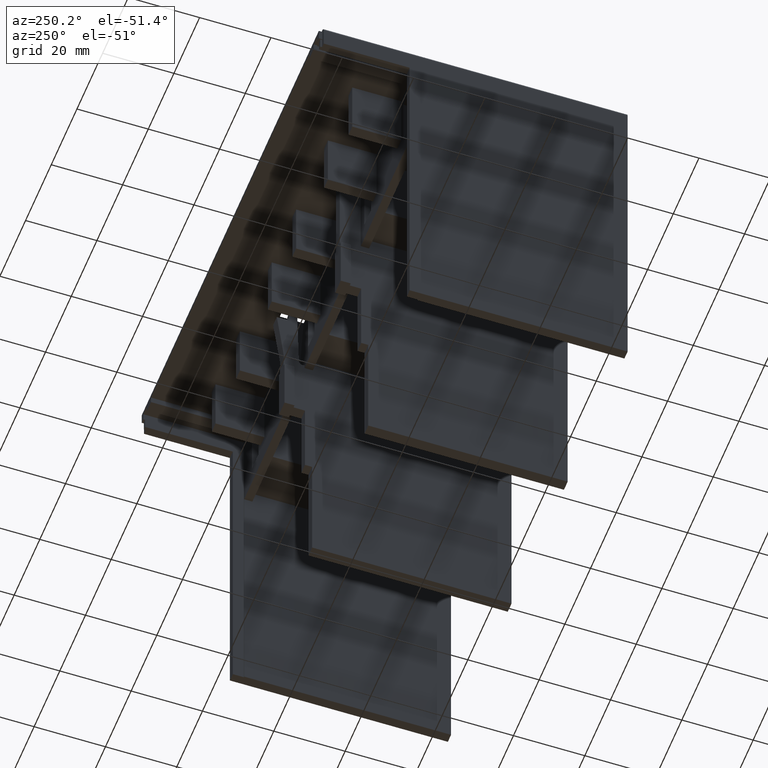
[diagram: clean part render]
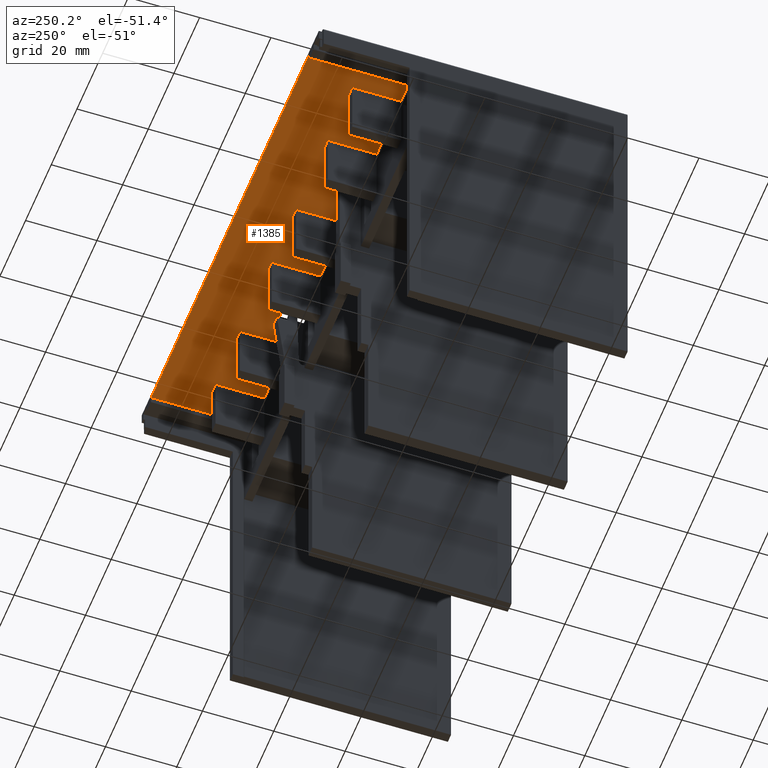
[diagram: same view with one face highlighted and labeled with its STEP entity id]
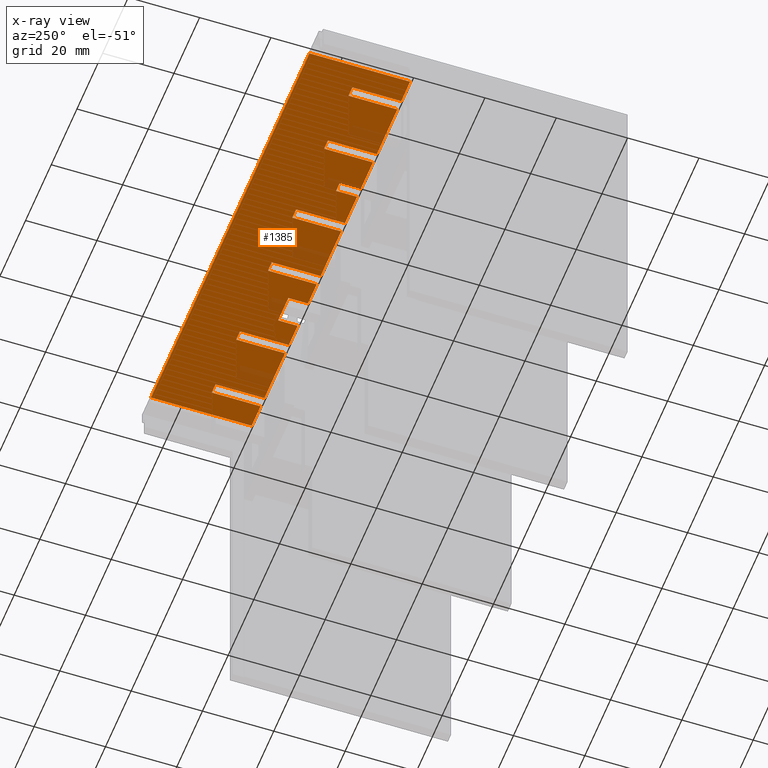
[diagram: x-ray of the same camera — body ghosted, the highlighted face saturated]
A machine part, auxiliary view. The second image highlights one B-rep face of the part: STEP entity #1385.
The next image is the same camera in x-ray: the body ghosted, the highlighted face saturated — about 5% of this face is hidden behind the body in this view.
In plain terms, the highlighted planar face has unit normal (0, -0, 1).
Its self-contained STEP definition (entity closure, byte-faithful):
#1385 = ADVANCED_FACE( '', ( #2840 ), #2841, .F. );
#2840 = FACE_OUTER_BOUND( '', #4350, .T. );
#2841 = PLANE( '', #4351 );
#4350 = EDGE_LOOP( '', ( #8958, #8959, #8960, #8961, #8962, #8963, #8964, #8965, #8966, #8967, #8968, #8969, #8970, #8971, #8972, #8973, #8974, #8975, #8976, #8977, #8978, #8979, #8980, #8981, #8982, #8983, #8984, #8985, #8986, #8987, #8988, #8989, #8990, #8991, #8992, #8993 ) );
#4351 = AXIS2_PLACEMENT_3D( '', #8994, #8995, #8996 );
#8958 = ORIENTED_EDGE( '', *, *, #10898, .F. );
#8959 = ORIENTED_EDGE( '', *, *, #9632, .T. );
#8960 = ORIENTED_EDGE( '', *, *, #11133, .T. );
#8961 = ORIENTED_EDGE( '', *, *, #11425, .F. );
#8962 = ORIENTED_EDGE( '', *, *, #10608, .F. );
#8963 = ORIENTED_EDGE( '', *, *, #11426, .F. );
#8964 = ORIENTED_EDGE( '', *, *, #10868, .T. );
#8965 = ORIENTED_EDGE( '', *, *, #11256, .F. );
#8966 = ORIENTED_EDGE( '', *, *, #10605, .F. );
#8967 = ORIENTED_EDGE( '', *, *, #11427, .F. );
#8968 = ORIENTED_EDGE( '', *, *, #11428, .T. );
#8969 = ORIENTED_EDGE( '', *, *, #11429, .F. );
#8970 = ORIENTED_EDGE( '', *, *, #10602, .F. );
#8971 = ORIENTED_EDGE( '', *, *, #10553, .T. );
#8972 = ORIENTED_EDGE( '', *, *, #11277, .F. );
#8973 = ORIENTED_EDGE( '', *, *, #11420, .F. );
#8974 = ORIENTED_EDGE( '', *, *, #11376, .F. );
#8975 = ORIENTED_EDGE( '', *, *, #11430, .F. );
#8976 = ORIENTED_EDGE( '', *, *, #9782, .T. );
#8977 = ORIENTED_EDGE( '', *, *, #9824, .F. );
#8978 = ORIENTED_EDGE( '', *, *, #11383, .F. );
#8979 = ORIENTED_EDGE( '', *, *, #10387, .F. );
#8980 = ORIENTED_EDGE( '', *, *, #11026, .T. );
#8981 = ORIENTED_EDGE( '', *, *, #10876, .F. );
#8982 = ORIENTED_EDGE( '', *, *, #11381, .F. );
#8983 = ORIENTED_EDGE( '', *, *, #11029, .F. );
#8984 = ORIENTED_EDGE( '', *, *, #11114, .F. );
#8985 = ORIENTED_EDGE( '', *, *, #11413, .T. );
#8986 = ORIENTED_EDGE( '', *, *, #10902, .F. );
#8987 = ORIENTED_EDGE( '', *, *, #11431, .F. );
#8988 = ORIENTED_EDGE( '', *, *, #9752, .T. );
#8989 = ORIENTED_EDGE( '', *, *, #10299, .F. );
#8990 = ORIENTED_EDGE( '', *, *, #10899, .F. );
#8991 = ORIENTED_EDGE( '', *, *, #9721, .F. );
#8992 = ORIENTED_EDGE( '', *, *, #11171, .T. );
#8993 = ORIENTED_EDGE( '', *, *, #10682, .F. );
#8994 = CARTESIAN_POINT( '', ( 61.7250000000000, 1.00000000000000, -1.76000000000000 ) );
#8995 = DIRECTION( '', ( 0.000000000000000, -0.000000000000000, 1.00000000000000 ) );
#8996 = DIRECTION( '', ( 1.00000000000000, 0.000000000000000, -0.000000000000000 ) );
#9632 = EDGE_CURVE( '', #11705, #11714, #11716, .T. );
#9721 = EDGE_CURVE( '', #11873, #11875, #11876, .T. );
#9752 = EDGE_CURVE( '', #11929, #11930, #11931, .T. );
#9782 = EDGE_CURVE( '', #11983, #11984, #11985, .T. );
#9824 = EDGE_CURVE( '', #12057, #11984, #12059, .T. );
#10299 = EDGE_CURVE( '', #12901, #11930, #12903, .T. );
#10387 = EDGE_CURVE( '', #13032, #13035, #13036, .T. );
#10553 = EDGE_CURVE( '', #13279, #13277, #13280, .T. );
#10602 = EDGE_CURVE( '', #13279, #13353, #13354, .T. );
#10605 = EDGE_CURVE( '', #13356, #13358, #13359, .T. );
#10608 = EDGE_CURVE( '', #13361, #13348, #13363, .T. );
#10682 = EDGE_CURVE( '', #13466, #13468, #13469, .T. );
#10868 = EDGE_CURVE( '', #13721, #13722, #13723, .T. );
#10876 = EDGE_CURVE( '', #13732, #13734, #13735, .T. );
#10898 = EDGE_CURVE( '', #11705, #13466, #13764, .T. );
#10899 = EDGE_CURVE( '', #11875, #12901, #13765, .T. );
#10902 = EDGE_CURVE( '', #13768, #13770, #13771, .T. );
#11026 = EDGE_CURVE( '', #13032, #13734, #13933, .T. );
#11029 = EDGE_CURVE( '', #13936, #13937, #13938, .T. );
#11114 = EDGE_CURVE( '', #14039, #13936, #14041, .T. );
#11133 = EDGE_CURVE( '', #11714, #14063, #14065, .T. );
#11171 = EDGE_CURVE( '', #11873, #13468, #14111, .T. );
#11256 = EDGE_CURVE( '', #13358, #13722, #14212, .T. );
#11277 = EDGE_CURVE( '', #14234, #13277, #14236, .T. );
#11376 = EDGE_CURVE( '', #14351, #14352, #14353, .T. );
#11381 = EDGE_CURVE( '', #13937, #13732, #14359, .T. );
#11383 = EDGE_CURVE( '', #13035, #12057, #14361, .T. );
#11413 = EDGE_CURVE( '', #14039, #13770, #14392, .T. );
#11420 = EDGE_CURVE( '', #14352, #14234, #14400, .T. );
#11425 = EDGE_CURVE( '', #13348, #14063, #14405, .T. );
#11426 = EDGE_CURVE( '', #13721, #13361, #14406, .T. );
#11427 = EDGE_CURVE( '', #14407, #13356, #14408, .T. );
#11428 = EDGE_CURVE( '', #14407, #14409, #14410, .T. );
#11429 = EDGE_CURVE( '', #13353, #14409, #14411, .T. );
#11430 = EDGE_CURVE( '', #11983, #14351, #14412, .T. );
#11431 = EDGE_CURVE( '', #11929, #13768, #14413, .T. );
#11705 = VERTEX_POINT( '', #14775 );
#11714 = VERTEX_POINT( '', #14787 );
#11716 = LINE( '', #14790, #14791 );
#11873 = VERTEX_POINT( '', #15017 );
#11875 = VERTEX_POINT( '', #15020 );
#11876 = LINE( '', #15021, #15022 );
#11929 = VERTEX_POINT( '', #15099 );
#11930 = VERTEX_POINT( '', #15100 );
#11931 = LINE( '', #15101, #15102 );
#11983 = VERTEX_POINT( '', #15177 );
#11984 = VERTEX_POINT( '', #15178 );
#11985 = LINE( '', #15179, #15180 );
#12057 = VERTEX_POINT( '', #15284 );
#12059 = LINE( '', #15287, #15288 );
#12901 = VERTEX_POINT( '', #16563 );
#12903 = LINE( '', #16566, #16567 );
#13032 = VERTEX_POINT( '', #16762 );
#13035 = VERTEX_POINT( '', #16766 );
#13036 = LINE( '', #16767, #16768 );
#13277 = VERTEX_POINT( '', #17130 );
#13279 = VERTEX_POINT( '', #17133 );
#13280 = LINE( '', #17134, #17135 );
#13348 = VERTEX_POINT( '', #17239 );
#13353 = VERTEX_POINT( '', #17247 );
#13354 = LINE( '', #17248, #17249 );
#13356 = VERTEX_POINT( '', #17252 );
#13358 = VERTEX_POINT( '', #17255 );
#13359 = LINE( '', #17256, #17257 );
#13361 = VERTEX_POINT( '', #17260 );
#13363 = LINE( '', #17263, #17264 );
#13466 = VERTEX_POINT( '', #17418 );
#13468 = VERTEX_POINT( '', #17421 );
#13469 = LINE( '', #17422, #17423 );
#13721 = VERTEX_POINT( '', #17801 );
#13722 = VERTEX_POINT( '', #17802 );
#13723 = LINE( '', #17803, #17804 );
#13732 = VERTEX_POINT( '', #17817 );
#13734 = VERTEX_POINT( '', #17820 );
#13735 = LINE( '', #17821, #17822 );
#13764 = LINE( '', #17866, #17867 );
#13765 = LINE( '', #17868, #17869 );
#13768 = VERTEX_POINT( '', #17873 );
#13770 = VERTEX_POINT( '', #17876 );
#13771 = LINE( '', #17877, #17878 );
#13933 = LINE( '', #18121, #18122 );
#13936 = VERTEX_POINT( '', #18126 );
#13937 = VERTEX_POINT( '', #18127 );
#13938 = LINE( '', #18128, #18129 );
#14039 = VERTEX_POINT( '', #18283 );
#14041 = LINE( '', #18286, #18287 );
#14063 = VERTEX_POINT( '', #18322 );
#14065 = LINE( '', #18325, #18326 );
#14111 = LINE( '', #18394, #18395 );
#14212 = LINE( '', #18544, #18545 );
#14234 = VERTEX_POINT( '', #18576 );
#14236 = LINE( '', #18579, #18580 );
#14351 = VERTEX_POINT( '', #18773 );
#14352 = VERTEX_POINT( '', #18774 );
#14353 = LINE( '', #18775, #18776 );
#14359 = LINE( '', #18786, #18787 );
#14361 = LINE( '', #18790, #18791 );
#14392 = LINE( '', #18832, #18833 );
#14400 = LINE( '', #18844, #18845 );
#14405 = LINE( '', #18850, #18851 );
#14406 = LINE( '', #18852, #18853 );
#14407 = VERTEX_POINT( '', #18854 );
#14408 = LINE( '', #18855, #18856 );
#14409 = VERTEX_POINT( '', #18857 );
#14410 = LINE( '', #18858, #18859 );
#14411 = LINE( '', #18860, #18861 );
#14412 = LINE( '', #18862, #18863 );
#14413 = LINE( '', #18864, #18865 );
#14775 = CARTESIAN_POINT( '', ( 25.8750000000000, -27.2000000000000, -1.76000000000000 ) );
#14787 = CARTESIAN_POINT( '', ( 25.8750000000000, -21.7100000000000, -1.76000000000000 ) );
#14790 = CARTESIAN_POINT( '', ( 25.8750000000000, 1.00000000000000, -1.76000000000000 ) );
#14791 = VECTOR( '', #19045, 1000.00000000000 );
#15017 = CARTESIAN_POINT( '', ( 35.7300000000000, -13.5000000000000, -1.76000000000000 ) );
#15020 = CARTESIAN_POINT( '', ( 35.7300000000000, -27.2000000000000, -1.76000000000000 ) );
#15021 = CARTESIAN_POINT( '', ( 35.7300000000000, 1.00000000000000, -1.76000000000000 ) );
#15022 = VECTOR( '', #19128, 1000.00000000000 );
#15099 = CARTESIAN_POINT( '', ( 54.7300000000000, -13.5000000000000, -1.76000000000000 ) );
#15100 = CARTESIAN_POINT( '', ( 51.7700000000000, -13.5000000000000, -1.76000000000000 ) );
#15101 = CARTESIAN_POINT( '', ( 61.7250000000000, -13.5000000000000, -1.76000000000000 ) );
#15102 = VECTOR( '', #19153, 1000.00000000000 );
#15177 = CARTESIAN_POINT( '', ( -32.7700000000000, -13.5000000000000, -1.76000000000000 ) );
#15178 = CARTESIAN_POINT( '', ( -35.7300000000000, -13.5000000000000, -1.76000000000000 ) );
#15179 = CARTESIAN_POINT( '', ( 61.7250000000000, -13.5000000000000, -1.76000000000000 ) );
#15180 = VECTOR( '', #19177, 1000.00000000000 );
#15284 = CARTESIAN_POINT( '', ( -35.7300000000000, -27.2000000000000, -1.76000000000000 ) );
#15287 = CARTESIAN_POINT( '', ( -35.7300000000000, 1.00000000000000, -1.76000000000000 ) );
#15288 = VECTOR( '', #19211, 1000.00000000000 );
#16563 = CARTESIAN_POINT( '', ( 51.7700000000000, -27.2000000000000, -1.76000000000000 ) );
#16566 = CARTESIAN_POINT( '', ( 51.7700000000000, 1.00000000000000, -1.76000000000000 ) );
#16567 = VECTOR( '', #19652, 1000.00000000000 );
#16762 = CARTESIAN_POINT( '', ( -51.7700000000000, -13.5000000000000, -1.76000000000000 ) );
#16766 = CARTESIAN_POINT( '', ( -51.7700000000000, -27.2000000000000, -1.76000000000000 ) );
#16767 = CARTESIAN_POINT( '', ( -51.7700000000000, 1.00000000000000, -1.76000000000000 ) );
#16768 = VECTOR( '', #19720, 1000.00000000000 );
#17130 = CARTESIAN_POINT( '', ( -20.4250000000000, -21.3000000000000, -1.76000000000000 ) );
#17133 = CARTESIAN_POINT( '', ( -20.4250000000000, -27.2000000000000, -1.76000000000000 ) );
#17134 = CARTESIAN_POINT( '', ( -20.4250000000000, 1.00000000000000, -1.76000000000000 ) );
#17135 = VECTOR( '', #19843, 1000.00000000000 );
#17239 = CARTESIAN_POINT( '', ( 17.8750000000000, -27.2000000000000, -1.76000000000000 ) );
#17247 = CARTESIAN_POINT( '', ( -10.9800000000000, -27.2000000000000, -1.76000000000000 ) );
#17248 = CARTESIAN_POINT( '', ( -61.7250000000000, -27.2000000000000, -1.76000000000000 ) );
#17249 = VECTOR( '', #19883, 1000.00000000000 );
#17252 = CARTESIAN_POINT( '', ( -8.02000000000000, -27.2000000000000, -1.76000000000000 ) );
#17255 = CARTESIAN_POINT( '', ( 8.02000000000000, -27.2000000000000, -1.76000000000000 ) );
#17256 = CARTESIAN_POINT( '', ( -61.7250000000000, -27.2000000000000, -1.76000000000000 ) );
#17257 = VECTOR( '', #19886, 1000.00000000000 );
#17260 = CARTESIAN_POINT( '', ( 10.9800000000000, -27.2000000000000, -1.76000000000000 ) );
#17263 = CARTESIAN_POINT( '', ( -61.7250000000000, -27.2000000000000, -1.76000000000000 ) );
#17264 = VECTOR( '', #19889, 1000.00000000000 );
#17418 = CARTESIAN_POINT( '', ( 32.7700000000000, -27.2000000000000, -1.76000000000000 ) );
#17421 = CARTESIAN_POINT( '', ( 32.7700000000000, -13.5000000000000, -1.76000000000000 ) );
#17422 = CARTESIAN_POINT( '', ( 32.7700000000000, 1.00000000000000, -1.76000000000000 ) );
#17423 = VECTOR( '', #19942, 1000.00000000000 );
#17801 = CARTESIAN_POINT( '', ( 10.9800000000000, -13.5000000000000, -1.76000000000000 ) );
#17802 = CARTESIAN_POINT( '', ( 8.02000000000000, -13.5000000000000, -1.76000000000000 ) );
#17803 = CARTESIAN_POINT( '', ( 61.7250000000000, -13.5000000000000, -1.76000000000000 ) );
#17804 = VECTOR( '', #20072, 1000.00000000000 );
#17817 = CARTESIAN_POINT( '', ( -54.7300000000000, -27.2000000000000, -1.76000000000000 ) );
#17820 = CARTESIAN_POINT( '', ( -54.7300000000000, -13.5000000000000, -1.76000000000000 ) );
#17821 = CARTESIAN_POINT( '', ( -54.7300000000000, 1.00000000000000, -1.76000000000000 ) );
#17822 = VECTOR( '', #20078, 1000.00000000000 );
#17866 = CARTESIAN_POINT( '', ( -61.7250000000000, -27.2000000000000, -1.76000000000000 ) );
#17867 = VECTOR( '', #20094, 1000.00000000000 );
#17868 = CARTESIAN_POINT( '', ( -61.7250000000000, -27.2000000000000, -1.76000000000000 ) );
#17869 = VECTOR( '', #20095, 1000.00000000000 );
#17873 = CARTESIAN_POINT( '', ( 54.7300000000000, -27.2000000000000, -1.76000000000000 ) );
#17876 = CARTESIAN_POINT( '', ( 61.7250000000000, -27.2000000000000, -1.76000000000000 ) );
#17877 = CARTESIAN_POINT( '', ( -61.7250000000000, -27.2000000000000, -1.76000000000000 ) );
#17878 = VECTOR( '', #20098, 1000.00000000000 );
#18121 = CARTESIAN_POINT( '', ( 61.7250000000000, -13.5000000000000, -1.76000000000000 ) );
#18122 = VECTOR( '', #20180, 1000.00000000000 );
#18126 = CARTESIAN_POINT( '', ( -61.7250000000000, 1.00000000000000, -1.76000000000000 ) );
#18127 = CARTESIAN_POINT( '', ( -61.7250000000000, -27.2000000000000, -1.76000000000000 ) );
#18128 = CARTESIAN_POINT( '', ( -61.7250000000000, 1.00000000000000, -1.76000000000000 ) );
#18129 = VECTOR( '', #20182, 1000.00000000000 );
#18283 = CARTESIAN_POINT( '', ( 61.7250000000000, 1.00000000000000, -1.76000000000000 ) );
#18286 = CARTESIAN_POINT( '', ( 61.7250000000000, 1.00000000000000, -1.76000000000000 ) );
#18287 = VECTOR( '', #20246, 1000.00000000000 );
#18322 = CARTESIAN_POINT( '', ( 17.8750000000000, -21.7100000000000, -1.76000000000000 ) );
#18325 = CARTESIAN_POINT( '', ( 25.8750000000000, -21.7100000000000, -1.76000000000000 ) );
#18326 = VECTOR( '', #20261, 1000.00000000000 );
#18394 = CARTESIAN_POINT( '', ( 61.7250000000000, -13.5000000000000, -1.76000000000000 ) );
#18395 = VECTOR( '', #20284, 1000.00000000000 );
#18544 = CARTESIAN_POINT( '', ( 8.02000000000000, 1.00000000000000, -1.76000000000000 ) );
#18545 = VECTOR( '', #20333, 1000.00000000000 );
#18576 = CARTESIAN_POINT( '', ( -23.3250000000000, -21.3000000000000, -1.76000000000000 ) );
#18579 = CARTESIAN_POINT( '', ( 61.7250000000000, -21.3000000000000, -1.76000000000000 ) );
#18580 = VECTOR( '', #20347, 1000.00000000000 );
#18773 = CARTESIAN_POINT( '', ( -32.7700000000000, -27.2000000000000, -1.76000000000000 ) );
#18774 = CARTESIAN_POINT( '', ( -23.3250000000000, -27.2000000000000, -1.76000000000000 ) );
#18775 = CARTESIAN_POINT( '', ( -61.7250000000000, -27.2000000000000, -1.76000000000000 ) );
#18776 = VECTOR( '', #20426, 1000.00000000000 );
#18786 = CARTESIAN_POINT( '', ( -61.7250000000000, -27.2000000000000, -1.76000000000000 ) );
#18787 = VECTOR( '', #20431, 1000.00000000000 );
#18790 = CARTESIAN_POINT( '', ( -61.7250000000000, -27.2000000000000, -1.76000000000000 ) );
#18791 = VECTOR( '', #20433, 1000.00000000000 );
#18832 = CARTESIAN_POINT( '', ( 61.7250000000000, 1.00000000000000, -1.76000000000000 ) );
#18833 = VECTOR( '', #20444, 1000.00000000000 );
#18844 = CARTESIAN_POINT( '', ( -23.3250000000000, 1.00000000000000, -1.76000000000000 ) );
#18845 = VECTOR( '', #20448, 1000.00000000000 );
#18850 = CARTESIAN_POINT( '', ( 17.8750000000000, -25.0176251043013, -1.76000000000001 ) );
#18851 = VECTOR( '', #20449, 1000.00000000000 );
#18852 = CARTESIAN_POINT( '', ( 10.9800000000000, 1.00000000000000, -1.76000000000000 ) );
#18853 = VECTOR( '', #20450, 1000.00000000000 );
#18854 = CARTESIAN_POINT( '', ( -8.02000000000000, -13.5000000000000, -1.76000000000000 ) );
#18855 = CARTESIAN_POINT( '', ( -8.02000000000001, 1.00000000000000, -1.76000000000000 ) );
#18856 = VECTOR( '', #20451, 1000.00000000000 );
#18857 = CARTESIAN_POINT( '', ( -10.9800000000000, -13.5000000000000, -1.76000000000000 ) );
#18858 = CARTESIAN_POINT( '', ( 61.7250000000000, -13.5000000000000, -1.76000000000000 ) );
#18859 = VECTOR( '', #20452, 1000.00000000000 );
#18860 = CARTESIAN_POINT( '', ( -10.9800000000000, 1.00000000000000, -1.76000000000000 ) );
#18861 = VECTOR( '', #20453, 1000.00000000000 );
#18862 = CARTESIAN_POINT( '', ( -32.7700000000000, 1.00000000000000, -1.76000000000000 ) );
#18863 = VECTOR( '', #20454, 1000.00000000000 );
#18864 = CARTESIAN_POINT( '', ( 54.7300000000000, 1.00000000000000, -1.76000000000000 ) );
#18865 = VECTOR( '', #20455, 1000.00000000000 );
#19045 = DIRECTION( '', ( -0.000000000000000, 1.00000000000000, 0.000000000000000 ) );
#19128 = DIRECTION( '', ( 0.000000000000000, -1.00000000000000, 0.000000000000000 ) );
#19153 = DIRECTION( '', ( -1.00000000000000, 0.000000000000000, 0.000000000000000 ) );
#19177 = DIRECTION( '', ( -1.00000000000000, 0.000000000000000, 0.000000000000000 ) );
#19211 = DIRECTION( '', ( -0.000000000000000, 1.00000000000000, 0.000000000000000 ) );
#19652 = DIRECTION( '', ( -0.000000000000000, 1.00000000000000, 0.000000000000000 ) );
#19720 = DIRECTION( '', ( 0.000000000000000, -1.00000000000000, 0.000000000000000 ) );
#19843 = DIRECTION( '', ( 0.000000000000000, 1.00000000000000, 0.000000000000000 ) );
#19883 = DIRECTION( '', ( 1.00000000000000, 0.000000000000000, 0.000000000000000 ) );
#19886 = DIRECTION( '', ( 1.00000000000000, 0.000000000000000, 0.000000000000000 ) );
#19889 = DIRECTION( '', ( 1.00000000000000, 0.000000000000000, 0.000000000000000 ) );
#19942 = DIRECTION( '', ( -0.000000000000000, 1.00000000000000, 0.000000000000000 ) );
#20072 = DIRECTION( '', ( -1.00000000000000, 0.000000000000000, 0.000000000000000 ) );
#20078 = DIRECTION( '', ( -0.000000000000000, 1.00000000000000, 0.000000000000000 ) );
#20094 = DIRECTION( '', ( 1.00000000000000, 0.000000000000000, 0.000000000000000 ) );
#20095 = DIRECTION( '', ( 1.00000000000000, 0.000000000000000, 0.000000000000000 ) );
#20098 = DIRECTION( '', ( 1.00000000000000, 0.000000000000000, 0.000000000000000 ) );
#20180 = DIRECTION( '', ( -1.00000000000000, 0.000000000000000, 0.000000000000000 ) );
#20182 = DIRECTION( '', ( -0.000000000000000, -1.00000000000000, -0.000000000000000 ) );
#20246 = DIRECTION( '', ( -1.00000000000000, 0.000000000000000, 0.000000000000000 ) );
#20261 = DIRECTION( '', ( -1.00000000000000, -0.000000000000000, -0.000000000000000 ) );
#20284 = DIRECTION( '', ( -1.00000000000000, 0.000000000000000, 0.000000000000000 ) );
#20333 = DIRECTION( '', ( -0.000000000000000, 1.00000000000000, 0.000000000000000 ) );
#20347 = DIRECTION( '', ( 1.00000000000000, 0.000000000000000, 0.000000000000000 ) );
#20426 = DIRECTION( '', ( 1.00000000000000, 0.000000000000000, 0.000000000000000 ) );
#20431 = DIRECTION( '', ( 1.00000000000000, 0.000000000000000, 0.000000000000000 ) );
#20433 = DIRECTION( '', ( 1.00000000000000, 0.000000000000000, 0.000000000000000 ) );
#20444 = DIRECTION( '', ( -0.000000000000000, -1.00000000000000, -0.000000000000000 ) );
#20448 = DIRECTION( '', ( 0.000000000000000, 1.00000000000000, 0.000000000000000 ) );
#20449 = DIRECTION( '', ( 0.000000000000000, 1.00000000000000, 6.55577423859549E-17 ) );
#20450 = DIRECTION( '', ( 0.000000000000000, -1.00000000000000, 0.000000000000000 ) );
#20451 = DIRECTION( '', ( 0.000000000000000, -1.00000000000000, 0.000000000000000 ) );
#20452 = DIRECTION( '', ( -1.00000000000000, 0.000000000000000, 0.000000000000000 ) );
#20453 = DIRECTION( '', ( -0.000000000000000, 1.00000000000000, 0.000000000000000 ) );
#20454 = DIRECTION( '', ( 0.000000000000000, -1.00000000000000, 0.000000000000000 ) );
#20455 = DIRECTION( '', ( 0.000000000000000, -1.00000000000000, 0.000000000000000 ) );